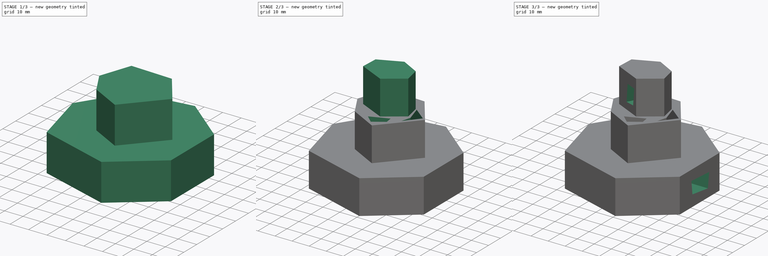
[diagram: build sequence overview — one tinted view per stage of 3, left to right]
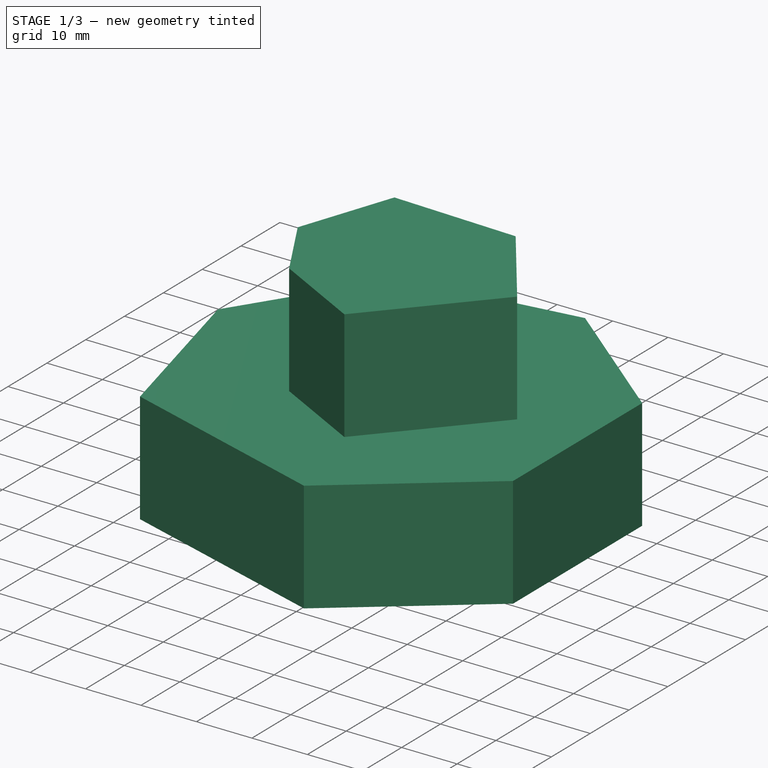
[diagram: stage 1 of 3 — iso view after this stage's code; geometry added in this stage tinted green]
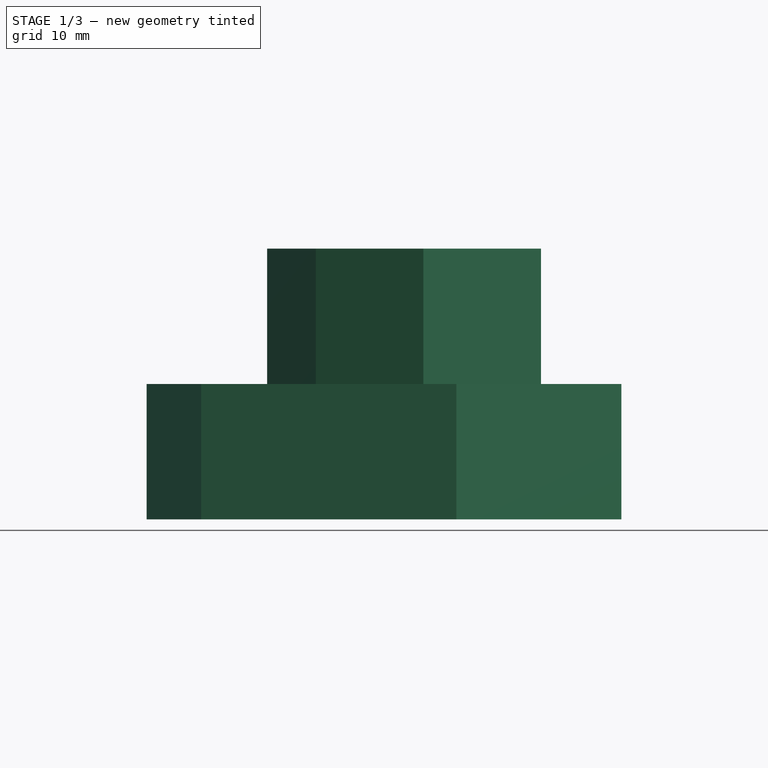
[diagram: stage 1 of 3 — front view after this stage's code; geometry added in this stage tinted green]
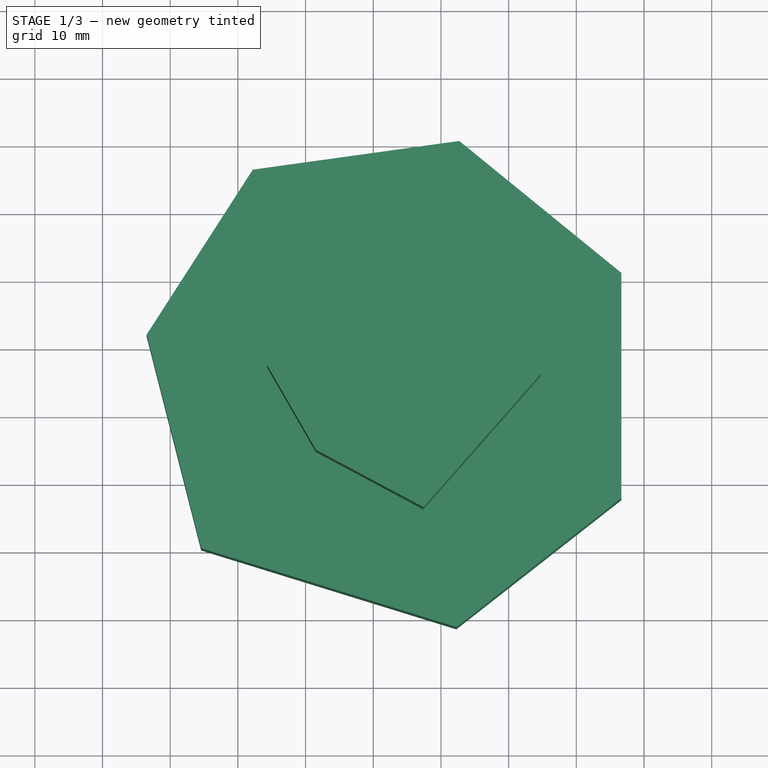
[diagram: stage 1 of 3 — top view after this stage's code; geometry added in this stage tinted green]
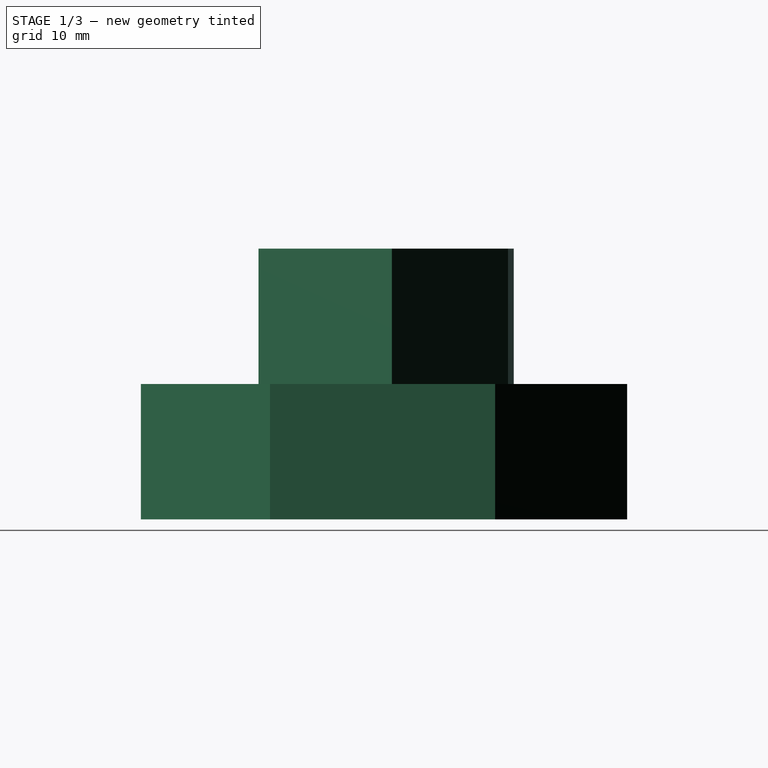
[diagram: stage 1 of 3 — right view after this stage's code; geometry added in this stage tinted green]
FCSTD DOCUMENT  (FreeCAD 0.21R33694 (Git))
Label: OJT1_T17P01_extrusions_i_buidats
License: All rights reserved
LicenseURL: https://en.wikipedia.org/wiki/All_rights_reserved
objects: Sketcher::SketchObject×7, PartDesign::Pocket×4, PartDesign::Pad×3, PartDesign::Body×1
note: 22 computed .brp shape members not serialized (recipe doc carries the construction recipe); baked Part::Feature solids carry a one-line shape summary decoded from their .brp

FEATURE [Sketcher::SketchObject] Sketch
  FullyConstrained = false
  MapMode = 5
  Support = -> [XY_Plane]
  sketch-geometry (7):
    g0: LineSegment StartX=-17.7966 StartY=26.2712 StartZ=0 EndX=12.7119 EndY=30.5085 EndZ=0
    g1: LineSegment StartX=12.7119 StartY=30.5085 StartZ=0 EndX=36.6525 EndY=11.0169 EndZ=0
    g2: LineSegment StartX=36.6525 StartY=11.0169 StartZ=0 EndX=36.6525 EndY=-22.2458 EndZ=0
    g3: LineSegment StartX=36.6525 StartY=-22.2458 StartZ=0 EndX=12.2881 EndY=-41.3136 EndZ=0
    g4: LineSegment StartX=12.2881 StartY=-41.3136 StartZ=0 EndX=-25.4237 EndY=-29.661 EndZ=0
    g5: LineSegment StartX=-25.4237 StartY=-29.661 StartZ=0 EndX=-33.4746 EndY=1.90678 EndZ=0
    g6: LineSegment StartX=-33.4746 StartY=1.90678 StartZ=0 EndX=-17.7966 EndY=26.2712 EndZ=0
  constraints (8):
    c: Coincident(g0,g1)
    c: Coincident(g1,g2)
    c: Vertical(g2)
    c: Coincident(g2,g3)
    c: Coincident(g3,g4)
    c: Coincident(g4,g5)
    c: Coincident(g5,g6)
    c: Coincident(g6,g0)
FEATURE [PartDesign::Pad] Pad
  Direction = (0,0,1)
  Length = 20
  Length2 = 10
  Profile = -> Sketch
  ReferenceAxis = -> Sketch [N_Axis]
  Type = 0
FEATURE [Sketcher::SketchObject] Sketch001
  FullyConstrained = false
  MapMode = 5
  Placement = pos=(0,0,20) rot=(0,0,1;0rad)
  Support = -> [Pad]
  sketch-geometry (6):
    g0: LineSegment StartX=-8.47457 StartY=-15.4661 StartZ=0 EndX=-15.678 EndY=-2.9661 EndZ=0
    g1: LineSegment StartX=-15.678 StartY=-2.9661 StartZ=0 EndX=-9.95762 EndY=13.7712 EndZ=0
    g2: LineSegment StartX=-9.95762 StartY=13.7712 StartZ=0 EndX=12.5 EndY=12.9237 EndZ=0
    g3: LineSegment StartX=12.5 StartY=12.9237 StartZ=0 EndX=24.7881 EndY=-4.23729 EndZ=0
    g4: LineSegment StartX=24.7881 StartY=-4.23729 StartZ=0 EndX=7.41526 EndY=-23.9407 EndZ=0
    g5: LineSegment StartX=7.41526 StartY=-23.9407 StartZ=0 EndX=-8.47457 EndY=-15.4661 EndZ=0
  constraints (6):
    c: Coincident(g0,g1)
    c: Coincident(g1,g2)
    c: Coincident(g2,g3)
    c: Coincident(g3,g4)
    c: Coincident(g4,g5)
    c: Coincident(g5,g0)
FEATURE [PartDesign::Pad] Pad001
  BaseFeature = -> Pad
  Direction = (0,0,1)
  Length = 20
  Length2 = 10
  Profile = -> Sketch001
  ReferenceAxis = -> Sketch001 [N_Axis]
  Type = 0
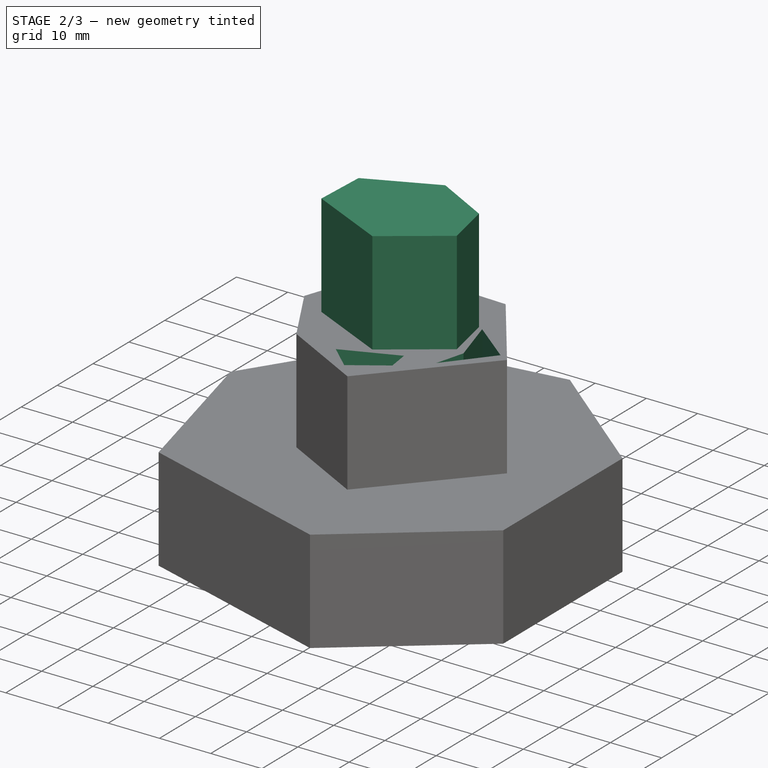
[diagram: stage 2 of 3 — iso view after this stage's code; geometry added in this stage tinted green]
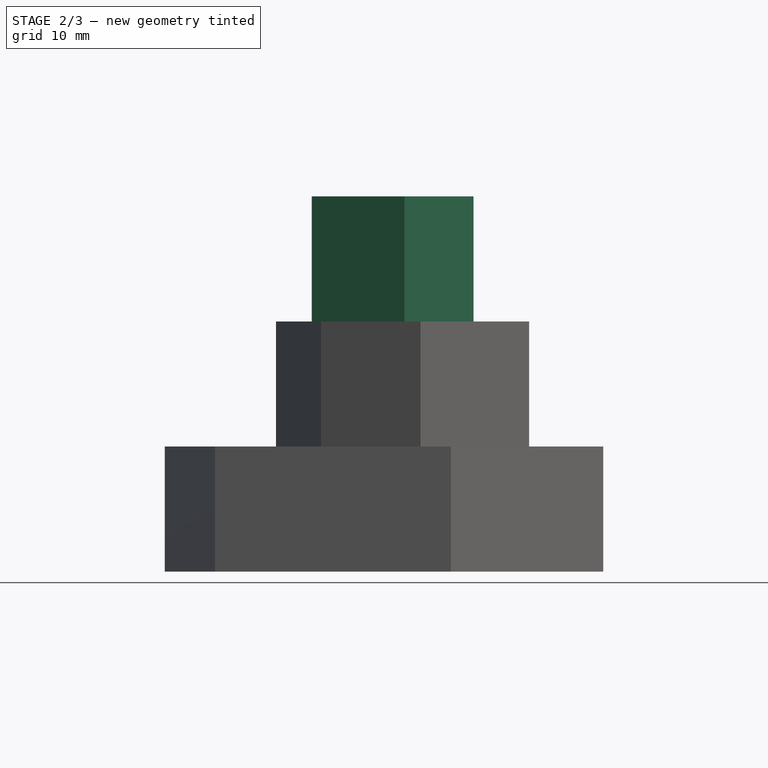
[diagram: stage 2 of 3 — front view after this stage's code; geometry added in this stage tinted green]
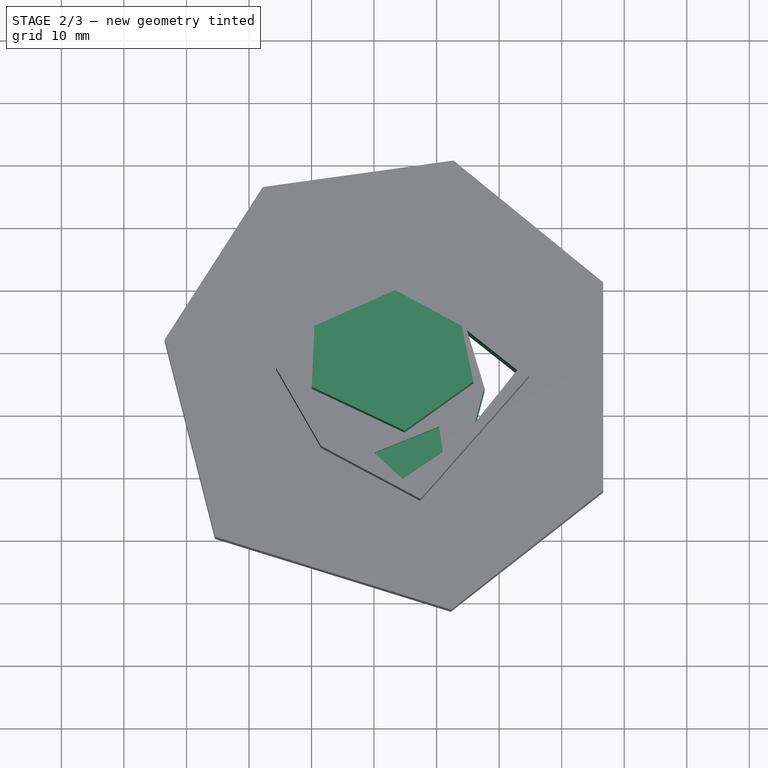
[diagram: stage 2 of 3 — top view after this stage's code; geometry added in this stage tinted green]
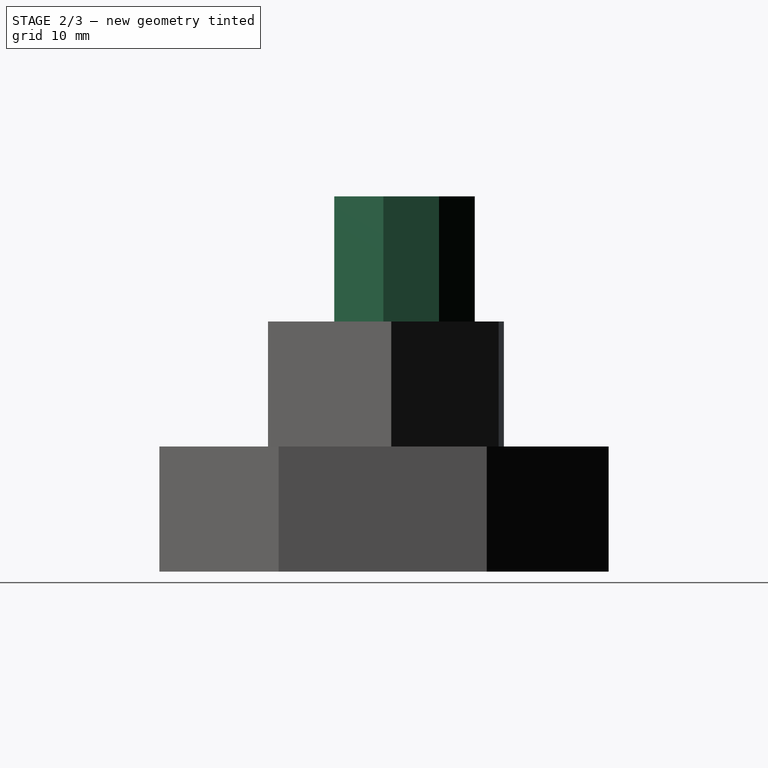
[diagram: stage 2 of 3 — right view after this stage's code; geometry added in this stage tinted green]
FEATURE [Sketcher::SketchObject] Sketch002
  FullyConstrained = false
  MapMode = 5
  Placement = pos=(0,0,40) rot=(0,0,1;0rad)
  Support = -> [Pad001]
  sketch-geometry (6):
    g0: LineSegment StartX=4.87289 StartY=-13.3475 StartZ=0 EndX=-9.95762 EndY=-6.35593 EndZ=0
    g1: LineSegment StartX=-9.95762 StartY=-6.35593 StartZ=0 EndX=-9.5339 EndY=3.38983 EndZ=0
    g2: LineSegment StartX=-9.5339 StartY=3.38983 StartZ=0 EndX=3.38983 EndY=9.11017 EndZ=0
    g3: LineSegment StartX=3.38983 StartY=9.11017 StartZ=0 EndX=13.9831 EndY=3.38983 EndZ=0
    g4: LineSegment StartX=13.9831 StartY=3.38983 StartZ=0 EndX=15.8898 EndY=-5.50847 EndZ=0
    g5: LineSegment StartX=15.8898 StartY=-5.50847 StartZ=0 EndX=4.87289 EndY=-13.3475 EndZ=0
  constraints (6):
    c: Coincident(g0,g1)
    c: Coincident(g1,g2)
    c: Coincident(g2,g3)
    c: Coincident(g3,g4)
    c: Coincident(g4,g5)
    c: Coincident(g5,g0)
FEATURE [PartDesign::Pad] Pad002
  BaseFeature = -> Pad001
  Direction = (0,0,1)
  Length = 20
  Length2 = 10
  Profile = -> Sketch002
  ReferenceAxis = -> Sketch002 [N_Axis]
  Type = 0
FEATURE [Sketcher::SketchObject] Sketch003
  FullyConstrained = false
  MapMode = 5
  Placement = pos=(0,0,40) rot=(0,0,1;0rad)
  Support = -> [Pad002]
  sketch-geometry (4):
    g0: LineSegment StartX=4.57688 StartY=-20.7657 StartZ=0 EndX=0 EndY=-16.5799 EndZ=0
    g1: LineSegment StartX=0 StartY=-16.5799 StartZ=0 EndX=10.3906 EndY=-12.394 EndZ=0
    g2: LineSegment StartX=10.3906 StartY=-12.394 StartZ=0 EndX=10.9719 EndY=-16.4636 EndZ=0
    g3: LineSegment StartX=10.9719 StartY=-16.4636 StartZ=0 EndX=4.57688 EndY=-20.7657 EndZ=0
  constraints (5):
    c: PointOnObject(g0,g-2)
    c: Coincident(g0,g1)
    c: Coincident(g1,g2)
    c: Coincident(g2,g3)
    c: Coincident(g3,g0)
FEATURE [PartDesign::Pocket] Pocket
  BaseFeature = -> Pad002
  Direction = (0,0,-1)
  Length = 5
  Length2 = 5
  Profile = -> Sketch003
  ReferenceAxis = -> Sketch003 [N_Axis]
  Type = 0
FEATURE [Sketcher::SketchObject] Sketch004
  FullyConstrained = false
  MapMode = 5
  Placement = pos=(0,0,40) rot=(0,0,1;0rad)
  Support = -> [Pocket]
  sketch-geometry (4):
    g0: LineSegment StartX=17.6483 StartY=-6.17772 StartZ=0 EndX=14.8573 EndY=3.00947 EndZ=0
    g1: LineSegment StartX=14.8573 StartY=3.00947 StartZ=0 EndX=22.888 EndY=-3.35024 EndZ=0
    g2: LineSegment StartX=22.888 StartY=-3.35024 StartZ=0 EndX=16.1876 EndY=-11.6824 EndZ=0
    g3: LineSegment StartX=16.1876 StartY=-11.6824 StartZ=0 EndX=17.6483 EndY=-6.17772 EndZ=0
  constraints (4):
    c: Coincident(g0,g1)
    c: Coincident(g1,g2)
    c: Coincident(g2,g3)
    c: Coincident(g3,g0)
FEATURE [PartDesign::Pocket] Pocket001
  BaseFeature = -> Pocket
  Direction = (0,0,-1)
  Length = 5
  Length2 = 5
  Profile = -> Sketch004
  ReferenceAxis = -> Sketch004 [N_Axis]
  Type = 1
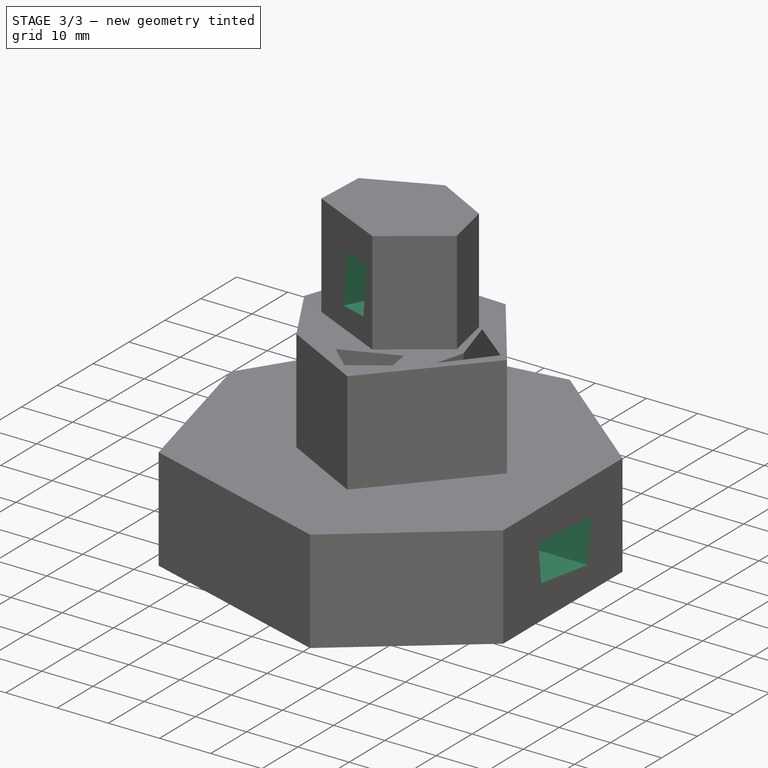
[diagram: stage 3 of 3 — iso view after this stage's code; geometry added in this stage tinted green]
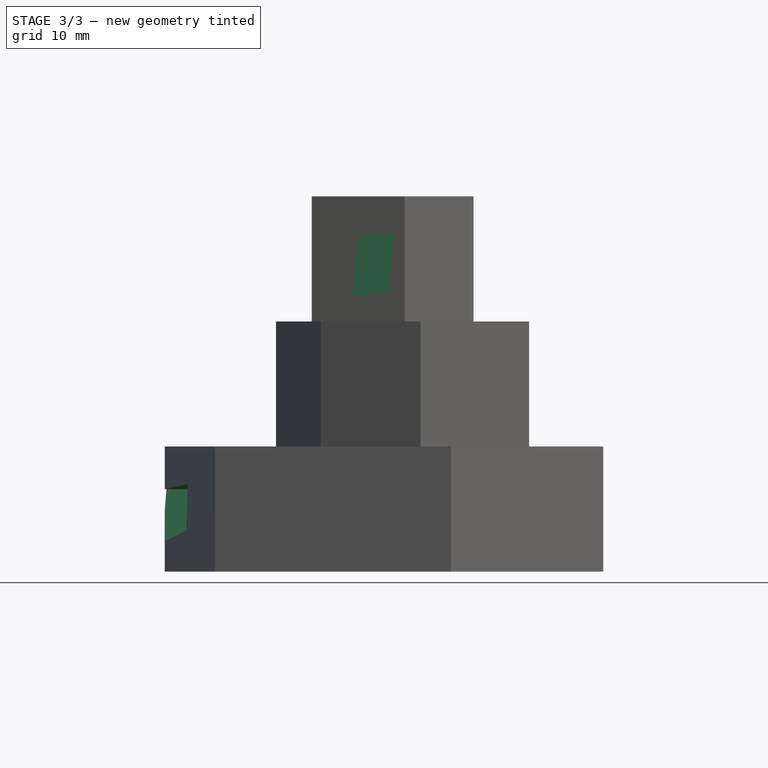
[diagram: stage 3 of 3 — front view after this stage's code; geometry added in this stage tinted green]
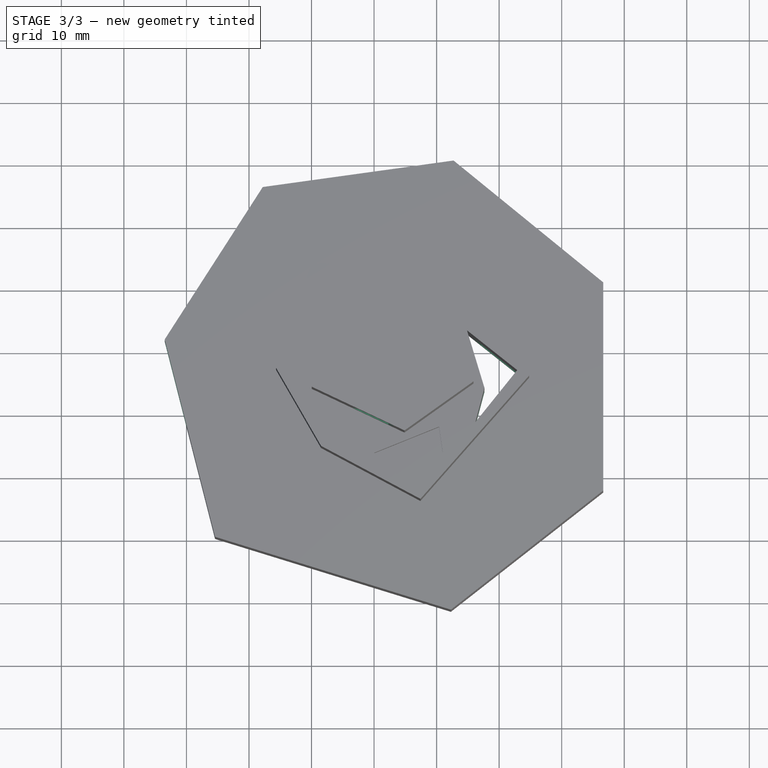
[diagram: stage 3 of 3 — top view after this stage's code; geometry added in this stage tinted green]
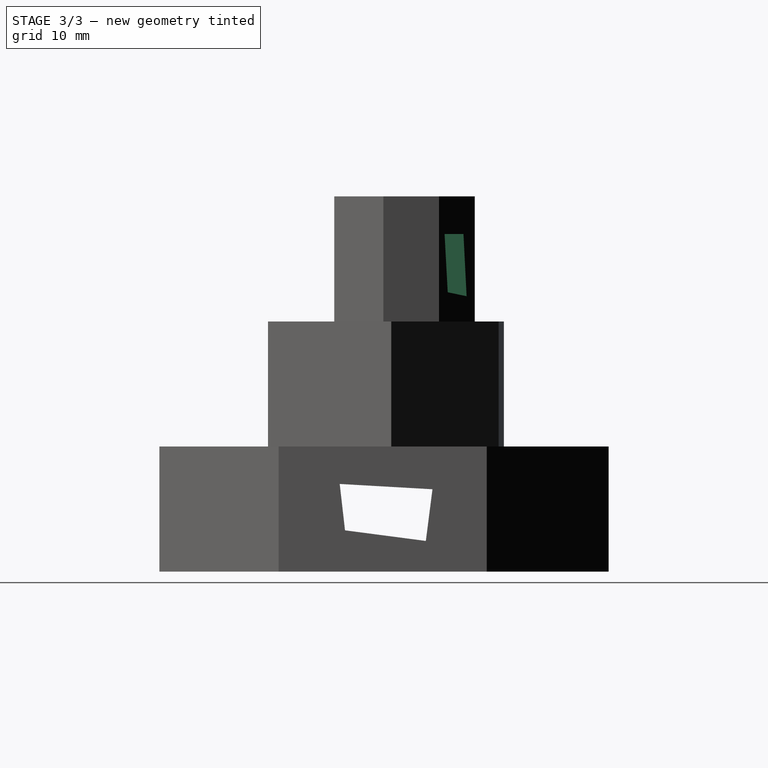
[diagram: stage 3 of 3 — right view after this stage's code; geometry added in this stage tinted green]
FEATURE [Sketcher::SketchObject] Sketch005
  FullyConstrained = false
  MapMode = 5
  Placement = pos=(4.57415,8.47064,0) rot=(0.175935,0.696077,0.696077;2.79329rad)
  Support = -> [Pocket001]
  sketch-geometry (4):
    g0: LineSegment StartX=-8.81484 StartY=53.9924 StartZ=0 EndX=-7.75552 EndY=44.6704 EndZ=0
    g1: LineSegment StartX=-7.75552 StartY=44.6704 StartZ=0 EndX=-1.39959 EndY=44.0348 EndZ=0
    g2: LineSegment StartX=-1.39959 StartY=44.0348 StartZ=0 EndX=-2.45891 EndY=53.9924 EndZ=0
    g3: LineSegment StartX=-2.45891 StartY=53.9924 StartZ=0 EndX=-8.81484 EndY=53.9924 EndZ=0
  constraints (5):
    c: Coincident(g0,g1)
    c: Coincident(g1,g2)
    c: Coincident(g2,g3)
    c: Coincident(g3,g0)
    c: Horizontal(g3)
FEATURE [PartDesign::Pocket] Pocket002
  BaseFeature = -> Pocket001
  Direction = (-0.475149,-0.879905,-3e-16)
  Length = 5
  Length2 = 5
  Profile = -> Sketch005
  ReferenceAxis = -> Sketch005 [N_Axis]
  Type = 1
FEATURE [Sketcher::SketchObject] Sketch006
  FullyConstrained = false
  MapMode = 5
  Placement = pos=(36.6525,0,0) rot=(0.57735,0.57735,0.57735;2.0944rad)
  Support = -> [Pocket002]
  sketch-geometry (4):
    g0: LineSegment StartX=-11.6362 StartY=6.60385 StartZ=0 EndX=-12.4836 EndY=14.0191 EndZ=0
    g1: LineSegment StartX=-12.4836 StartY=14.0191 StartZ=0 EndX=2.34688 EndY=13.1716 EndZ=0
    g2: LineSegment StartX=2.34688 StartY=13.1716 StartZ=0 EndX=1.28756 EndY=4.90893 EndZ=0
    g3: LineSegment StartX=1.28756 StartY=4.90893 StartZ=0 EndX=-11.6362 EndY=6.60385 EndZ=0
  constraints (4):
    c: Coincident(g0,g1)
    c: Coincident(g1,g2)
    c: Coincident(g2,g3)
    c: Coincident(g3,g0)
FEATURE [PartDesign::Pocket] Pocket003
  BaseFeature = -> Pocket002
  Direction = (-1,0,0)
  Length = 5
  Length2 = 5
  Profile = -> Sketch006
  ReferenceAxis = -> Sketch006 [N_Axis]
  Type = 1
FEATURE [PartDesign::Body] Body
  Group = -> [Sketch,Pad,Sketch001,Pad001,Sketch002,Pad002,Sketch003,Pocket,Sketch004,Pocket001,Sketch005,Pocket002,Sketch006,Pocket003]
  Origin = -> Origin
  Tip = -> Pocket003
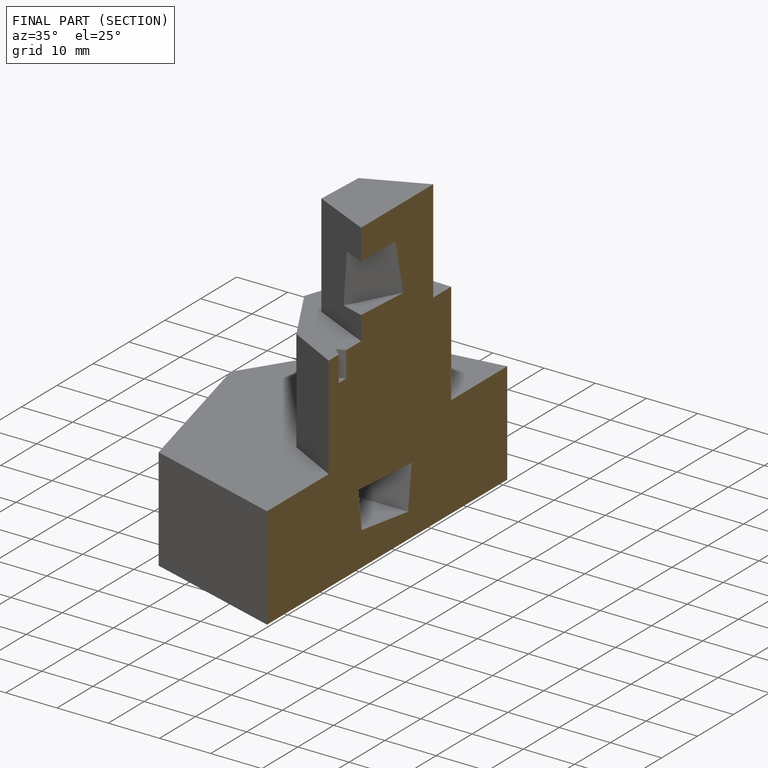
[diagram: finished part — half-section view (interior)]
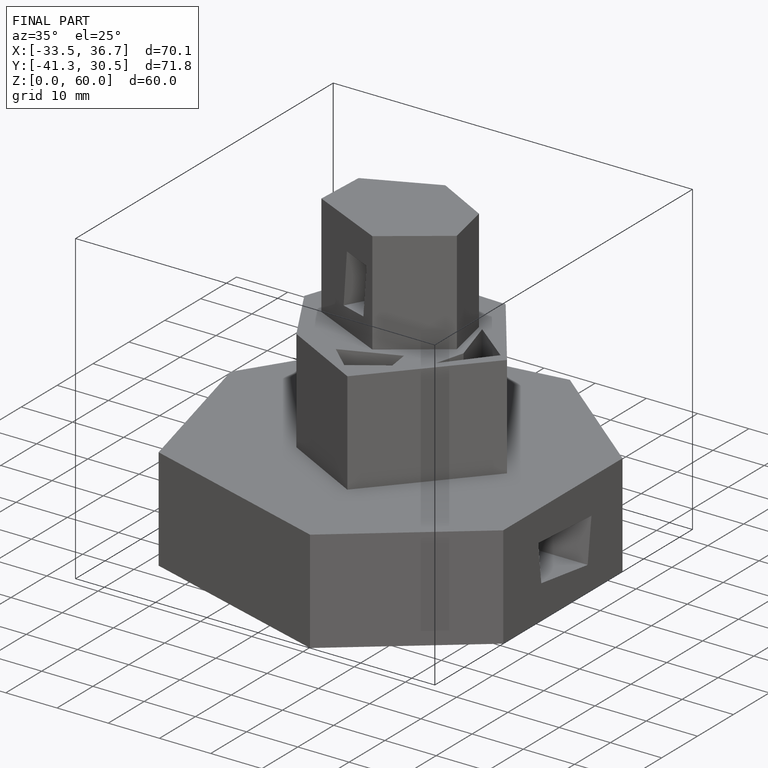
[diagram: finished part — iso view with bounding-box wireframe]
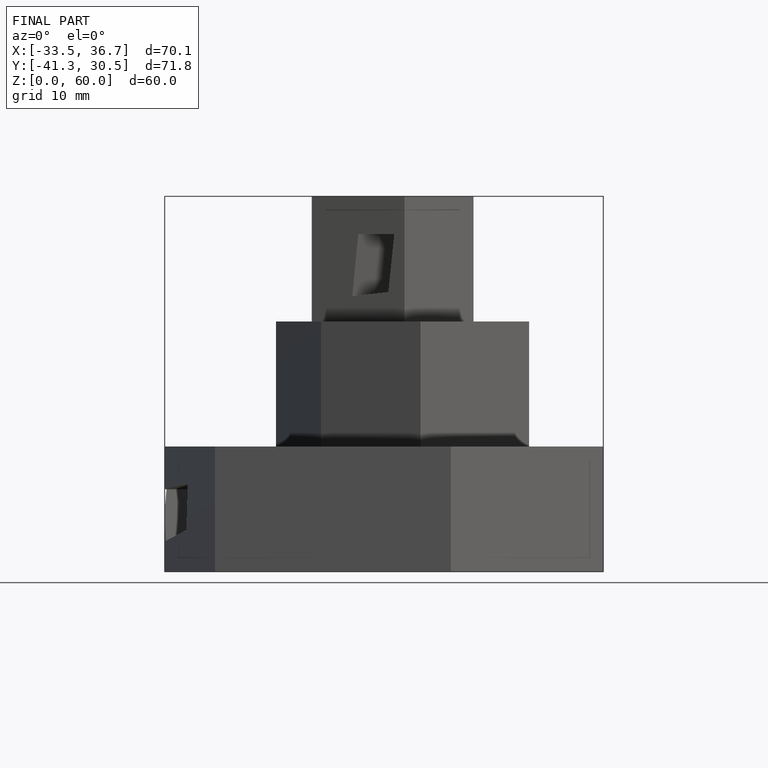
[diagram: finished part — front view with bounding-box wireframe]
